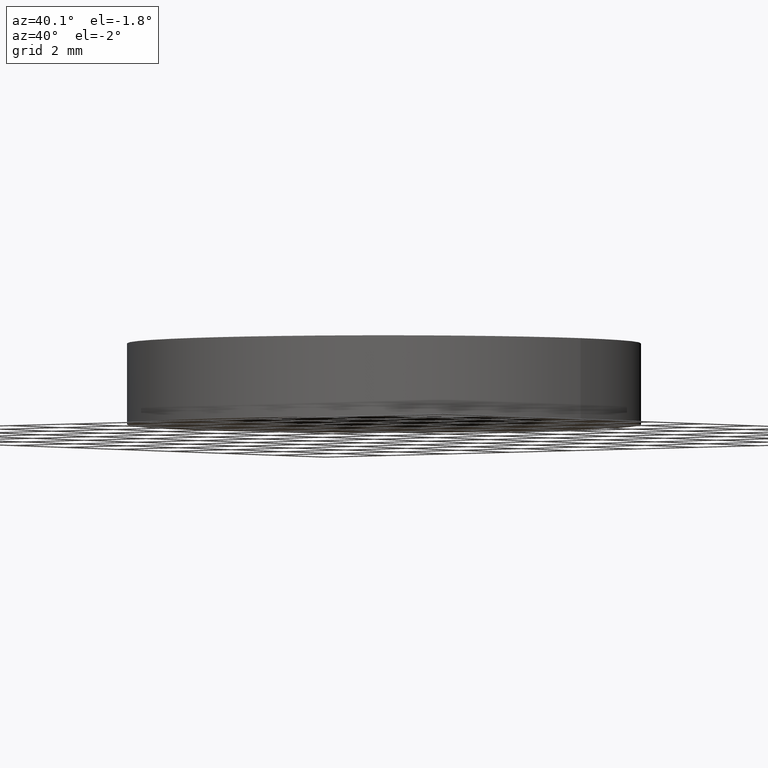
[diagram: clean part render]
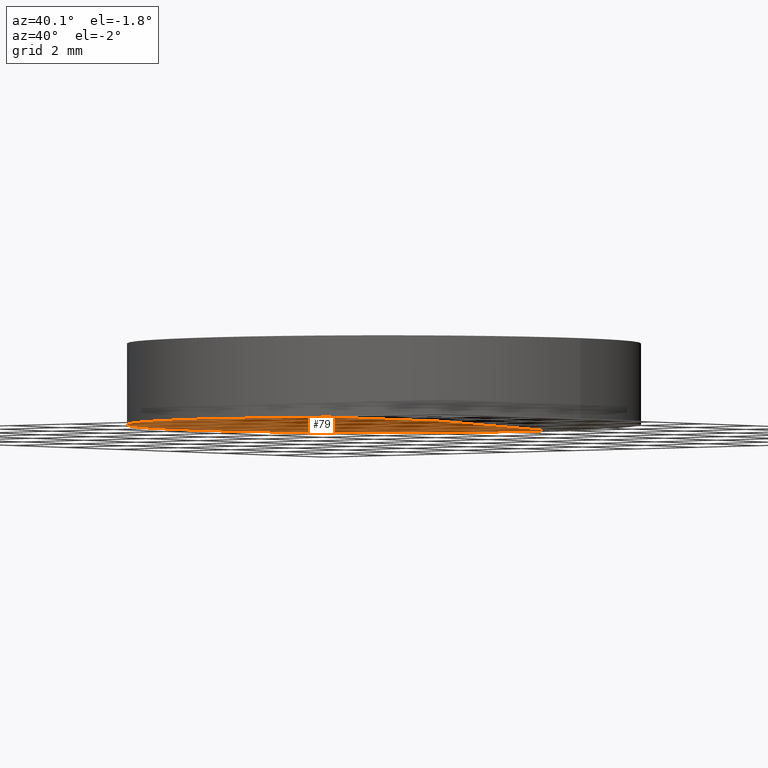
[diagram: same view with one face highlighted and labeled with its STEP entity id]
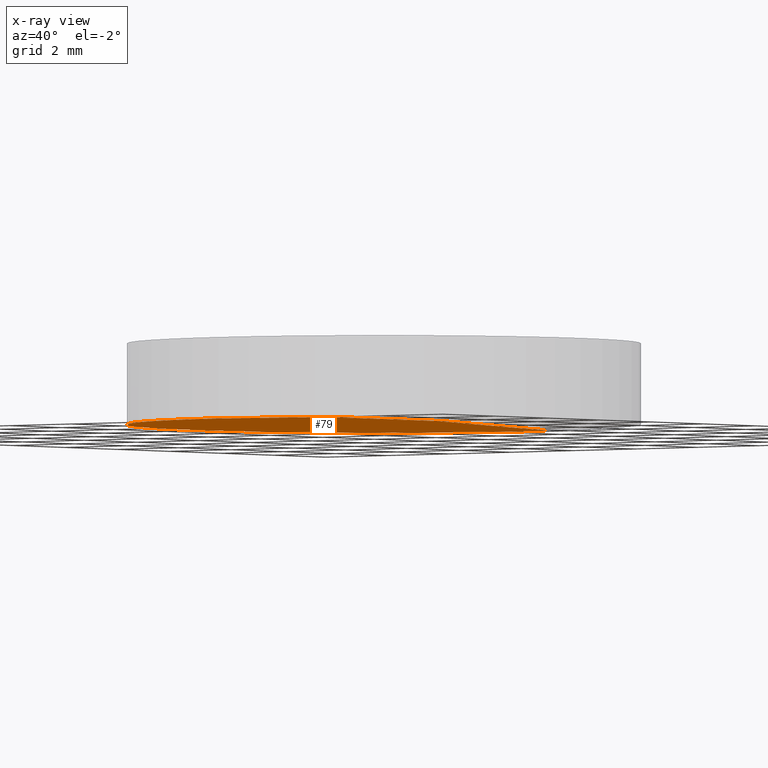
[diagram: x-ray of the same camera — body ghosted, the highlighted face saturated]
A machine part, auxiliary view. The second image highlights one B-rep face of the part: STEP entity #79.
The next image is the same camera in x-ray: the body ghosted, the highlighted face saturated — about 0% of this face is hidden behind the body in this view.
In plain terms, the highlighted face is a freeform B-spline surface patch.
Its self-contained STEP definition (entity closure, byte-faithful):
#24 = CARTESIAN_POINT ( 'NONE',  ( -4.261951656520508000, -2.143793272918273800, 0.0006374862197401164400 ) ) ;
#32 = CIRCLE ( 'NONE', #293, 6.349999999999999600 ) ;
#39 = CARTESIAN_POINT ( 'NONE',  ( 2.498001805406600200E-016, 1.221245327087670000E-015, -0.1551791560402660000 ) ) ;
#45 = CARTESIAN_POINT ( 'NONE',  ( -6.390674658232237300, 2.143793272918292000, -0.1040923423541507000 ) ) ;
#51 = CARTESIAN_POINT ( 'NONE',  ( -2.127824408194727300, -6.426138242948600700, -0.1589250380199798700 ) ) ;
#60 = DIRECTION ( 'NONE',  ( 2.235275075987079100E-016, 1.000000000000000000, 0.0000000000000000000 ) ) ;
#63 = VERTEX_POINT ( 'NONE', #209 ) ;
#79 = ADVANCED_FACE ( 'NONE', ( #272 ), #163, .F. ) ;
#86 = CARTESIAN_POINT ( 'NONE',  ( -6.380259979336481800, -6.426138242948599800, -0.3157795648268124600 ) ) ;
#98 = VERTEX_POINT ( 'NONE', #242 ) ;
#105 = AXIS2_PLACEMENT_3D ( 'NONE', #157, #199, #60 ) ;
#114 = CARTESIAN_POINT ( 'NONE',  ( -2.131297716183690600, 2.143793272918290700, 0.05301822253503742100 ) ) ;
#123 = CIRCLE ( 'NONE', #201, 6.349999999999999600 ) ;
#137 = CARTESIAN_POINT ( 'NONE',  ( -2.127824408194723700, 6.426138242948616700, -0.1589250380199799300 ) ) ;
#138 = VERTEX_POINT ( 'NONE', #140 ) ;
#140 = CARTESIAN_POINT ( 'NONE',  ( -6.349999999999999600, 1.998896044546239400E-015, -0.1551791560402660000 ) ) ;
#154 = ORIENTED_EDGE ( 'NONE', *, *, #214, .F. ) ;
#157 = CARTESIAN_POINT ( 'NONE',  ( -4.263256414560599900E-014, 1.421085471520200100E-014, -130.0000000000000000 ) ) ;
#158 = CIRCLE ( 'NONE', #105, 130.0000000000000000 ) ;
#163 =( BOUNDED_SURFACE ( )  B_SPLINE_SURFACE ( 3, 3, ( 
 ( #186, #210, #137, #234 ),
 ( #45, #187, #114, #275 ),
 ( #295, #24, #185, #236 ),
 ( #86, #281, #51, #217 ) ),
 .UNSPECIFIED., .F., .F., .T. ) 
 B_SPLINE_SURFACE_WITH_KNOTS ( ( 4, 4 ),
 ( 4, 4 ),
 ( 0.0000000000000000000, 1.000000000000000000 ),
 ( 0.0000000000000000000, 1.000000000000000000 ),
 .UNSPECIFIED. ) 
 GEOMETRIC_REPRESENTATION_ITEM ( )  RATIONAL_B_SPLINE_SURFACE ( (
 ( 1.000000000000000000, 0.9997986278994979200, 0.9997986278994979200, 1.000000000000000000),
 ( 0.9991849998050256200, 0.9989837918228247100, 0.9989837918228247100, 0.9991849998050256200),
 ( 0.9991849998050256200, 0.9989837918228247100, 0.9989837918228247100, 0.9991849998050256200),
 ( 1.000000000000000000, 0.9997986278994979200, 0.9997986278994979200, 1.000000000000000000) ) ) 
 REPRESENTATION_ITEM ( '' )  SURFACE ( )  );
#173 = EDGE_LOOP ( 'NONE', ( #154, #292, #262 ) ) ;
#177 = DIRECTION ( 'NONE',  ( 1.000000000000000000, 0.0000000000000000000, 0.0000000000000000000 ) ) ;
#185 = CARTESIAN_POINT ( 'NONE',  ( -2.131297716183692300, -2.143793272918274300, 0.05301822253503794800 ) ) ;
#186 = CARTESIAN_POINT ( 'NONE',  ( -6.380259979336478300, 6.426138242948618500, -0.3157795648268124600 ) ) ;
#187 = CARTESIAN_POINT ( 'NONE',  ( -4.261951656520506200, 2.143793272918291100, 0.0006374862197396558800 ) ) ;
#190 = EDGE_CURVE ( 'NONE', #63, #98, #158, .T. ) ;
#199 = DIRECTION ( 'NONE',  ( 1.000000000000000000, -2.235275075987080100E-016, -4.190856211253810000E-016 ) ) ;
#201 = AXIS2_PLACEMENT_3D ( 'NONE', #271, #252, #177 ) ;
#206 = EDGE_CURVE ( 'NONE', #138, #98, #32, .T. ) ;
#209 = CARTESIAN_POINT ( 'NONE',  ( 1.320293292095049300E-014, 6.350000000000090200, -0.1551791560402676400 ) ) ;
#210 = CARTESIAN_POINT ( 'NONE',  ( -4.255006089683560900, 6.426138242948616700, -0.2112204111180554200 ) ) ;
#214 = EDGE_CURVE ( 'NONE', #63, #138, #123, .T. ) ;
#217 = CARTESIAN_POINT ( 'NONE',  ( -2.255140518769849200E-014, -6.426138242948601600, -0.1589250380199802000 ) ) ;
#227 = DIRECTION ( 'NONE',  ( 1.000000000000000000, 0.0000000000000000000, 0.0000000000000000000 ) ) ;
#234 = CARTESIAN_POINT ( 'NONE',  ( -1.908195823574487800E-014, 6.426138242948616700, -0.1589250380199802600 ) ) ;
#236 = CARTESIAN_POINT ( 'NONE',  ( -2.168404344971008600E-014, -2.143793272918275200, 0.05301822253503759400 ) ) ;
#242 = CARTESIAN_POINT ( 'NONE',  ( 1.036413357444686600E-014, -6.350000000000074300, -0.1551791560402676400 ) ) ;
#251 = DIRECTION ( 'NONE',  ( 0.0000000000000000000, 0.0000000000000000000, 1.000000000000000000 ) ) ;
#252 = DIRECTION ( 'NONE',  ( 0.0000000000000000000, 0.0000000000000000000, 1.000000000000000000 ) ) ;
#262 = ORIENTED_EDGE ( 'NONE', *, *, #206, .F. ) ;
#271 = CARTESIAN_POINT ( 'NONE',  ( 2.498001805406600200E-016, 1.221245327087670000E-015, -0.1551791560402660000 ) ) ;
#272 = FACE_OUTER_BOUND ( 'NONE', #173, .T. ) ;
#275 = CARTESIAN_POINT ( 'NONE',  ( -1.994931997373327800E-014, 2.143793272918290700, 0.05301822253503705300 ) ) ;
#281 = CARTESIAN_POINT ( 'NONE',  ( -4.255006089683564400, -6.426138242948600700, -0.2112204111180554200 ) ) ;
#292 = ORIENTED_EDGE ( 'NONE', *, *, #190, .T. ) ;
#293 = AXIS2_PLACEMENT_3D ( 'NONE', #39, #251, #227 ) ;
#295 = CARTESIAN_POINT ( 'NONE',  ( -6.390674658232239100, -2.143793272918273800, -0.1040923423541502700 ) ) ;